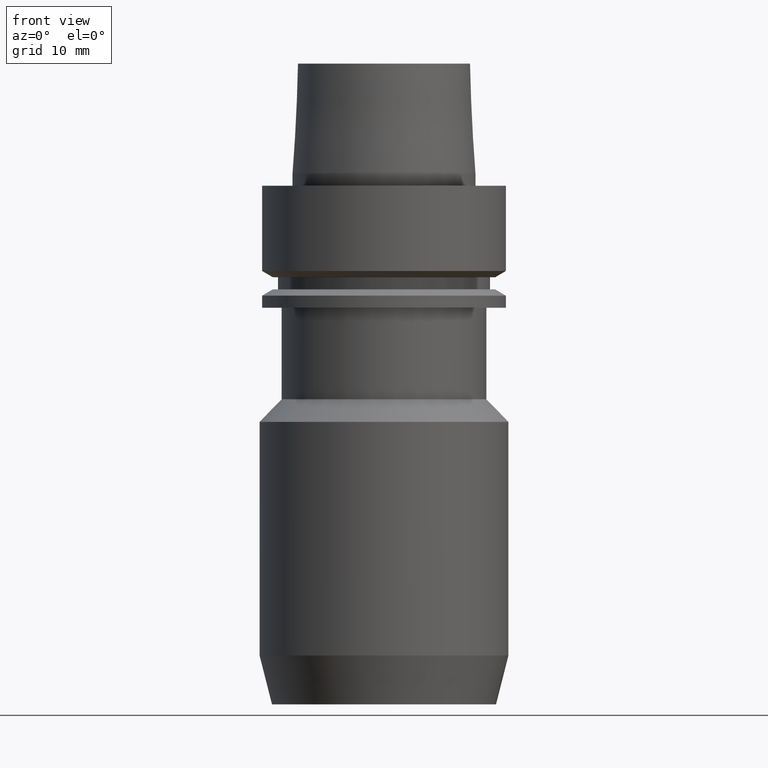
[diagram: clean part render]
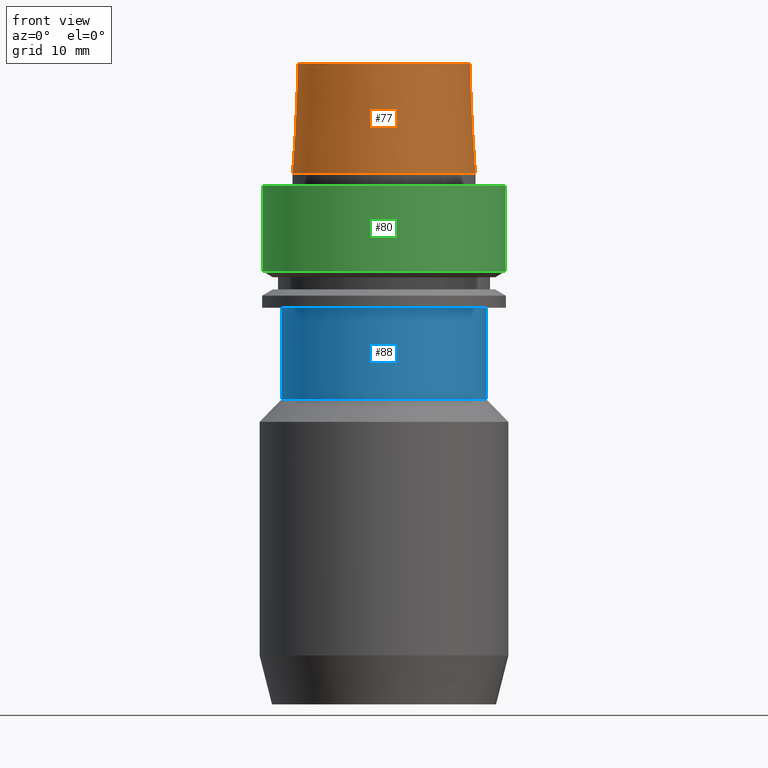
[diagram: same view with three faces highlighted in distinct colors, each labeled with its STEP entity id]
A machine part, front view with three faces highlighted in distinct colors.
Their STEP definitions:

[orange] entity #77 — the highlighted conical surface has half-angle 2.862 deg.
#77=ADVANCED_FACE('',(#97,#98),#99,.T.);
#97=FACE_BOUND('',#146,.T.);
#98=FACE_BOUND('',#147,.T.);
#99=CONICAL_SURFACE('',#148,14.6500000023492,0.0499583954615709);
#146=EDGE_LOOP('',(#199));
#147=EDGE_LOOP('',(#200));
#148=AXIS2_PLACEMENT_3D('',#201,#202,#203);
#199=ORIENTED_EDGE('',*,*,#276,.F.);
#200=ORIENTED_EDGE('',*,*,#275,.T.);
#201=CARTESIAN_POINT('',(-6.73555739531044E-016,-1.34711147906209E-015,11.0));
#202=DIRECTION('',(6.12323399573676E-017,1.22464679914735E-016,-1.0));
#203=DIRECTION('',(-1.23259516440783E-032,1.0,1.22464679914735E-016));
#275=EDGE_CURVE('',#292,#292,#293,.T.);
#276=EDGE_CURVE('',#294,#294,#295,.T.);
#292=VERTEX_POINT('',#324);
#293=CIRCLE('',#325,14.2000000046984);
#294=VERTEX_POINT('',#326);
#295=CIRCLE('',#327,15.1);
#324=CARTESIAN_POINT('',(-1.22464679914735E-015,14.2000000046984,20.0));
#325=AXIS2_PLACEMENT_3D('',#357,#358,#359);
#326=CARTESIAN_POINT('',(-1.22464679914736E-016,15.1,2.0));
#327=AXIS2_PLACEMENT_3D('',#360,#361,#362);
#357=CARTESIAN_POINT('',(-1.22464679914735E-015,-2.44929359829471E-015,20.0));
#358=DIRECTION('',(6.12323399573677E-017,1.22464679914735E-016,-1.0));
#359=DIRECTION('',(-1.23259516440783E-032,1.0,1.22464679914735E-016));
#360=CARTESIAN_POINT('',(-1.22464679914735E-016,-2.44929359829471E-016,2.0));
#361=DIRECTION('',(6.12323399573677E-017,1.22464679914735E-016,-1.0));
#362=DIRECTION('',(-1.23259516440783E-032,1.0,1.22464679914735E-016));

[blue] entity #88 — the highlighted cylindrical surface (bore or boss wall) has radius 16.8 mm, axis along (-0, -0, 1).
#88=ADVANCED_FACE('',(#130,#131),#132,.T.);
#130=FACE_BOUND('',#179,.T.);
#131=FACE_BOUND('',#180,.T.);
#132=CYLINDRICAL_SURFACE('',#181,16.8);
#179=EDGE_LOOP('',(#254));
#180=EDGE_LOOP('',(#255));
#181=AXIS2_PLACEMENT_3D('',#256,#257,#258);
#254=ORIENTED_EDGE('',*,*,#287,.F.);
#255=ORIENTED_EDGE('',*,*,#286,.T.);
#256=CARTESIAN_POINT('',(1.68388934882761E-015,3.36777869765522E-015,-27.5));
#257=DIRECTION('',(-6.12323399573677E-017,-1.22464679914735E-016,1.0));
#258=DIRECTION('',(-1.23259516440783E-032,1.0,1.22464679914735E-016));
#286=EDGE_CURVE('',#314,#314,#315,.T.);
#287=EDGE_CURVE('',#316,#316,#317,.T.);
#314=VERTEX_POINT('',#346);
#315=CIRCLE('',#347,16.8);
#316=VERTEX_POINT('',#348);
#317=CIRCLE('',#349,16.8);
#346=CARTESIAN_POINT('',(1.22464679914735E-015,16.8,-20.0));
#347=AXIS2_PLACEMENT_3D('',#390,#391,#392);
#348=CARTESIAN_POINT('',(2.14313189850787E-015,16.8,-35.0));
#349=AXIS2_PLACEMENT_3D('',#393,#394,#395);
#390=CARTESIAN_POINT('',(1.22464679914735E-015,2.44929359829471E-015,-20.0));
#391=DIRECTION('',(6.12323399573677E-017,1.22464679914735E-016,-1.0));
#392=DIRECTION('',(-1.23259516440783E-032,1.0,1.22464679914735E-016));
#393=CARTESIAN_POINT('',(2.14313189850787E-015,4.28626379701574E-015,-35.0));
#394=DIRECTION('',(6.12323399573677E-017,1.22464679914735E-016,-1.0));
#395=DIRECTION('',(-1.23259516440783E-032,1.0,1.22464679914735E-016));

[green] entity #80 — the highlighted cylindrical surface (bore or boss wall) has radius 20 mm, axis along (-0, -0, 1).
#80=ADVANCED_FACE('',(#106,#107),#108,.T.);
#106=FACE_BOUND('',#155,.T.);
#107=FACE_BOUND('',#156,.T.);
#108=CYLINDRICAL_SURFACE('',#157,20.0);
#155=EDGE_LOOP('',(#214));
#156=EDGE_LOOP('',(#215));
#157=AXIS2_PLACEMENT_3D('',#216,#217,#218);
#214=ORIENTED_EDGE('',*,*,#279,.F.);
#215=ORIENTED_EDGE('',*,*,#278,.T.);
#216=CARTESIAN_POINT('',(4.27991830799565E-016,8.55983661599131E-016,-6.98963703));
#217=DIRECTION('',(-6.12323399573677E-017,-1.22464679914735E-016,1.0));
#218=DIRECTION('',(-1.23259516440783E-032,1.0,1.22464679914735E-016));
#278=EDGE_CURVE('',#298,#298,#299,.T.);
#279=EDGE_CURVE('',#300,#300,#301,.T.);
#298=VERTEX_POINT('',#330);
#299=CIRCLE('',#331,20.0);
#300=VERTEX_POINT('',#332);
#301=CIRCLE('',#333,20.0);
#330=CARTESIAN_POINT('',(-2.46519032881566E-031,20.0,2.44929359829471E-015));
#331=AXIS2_PLACEMENT_3D('',#366,#367,#368);
#332=CARTESIAN_POINT('',(8.55983661599131E-016,20.0,-13.97927406));
#333=AXIS2_PLACEMENT_3D('',#369,#370,#371);
#366=CARTESIAN_POINT('',(0.0,0.0,0.0));
#367=DIRECTION('',(6.12323399573677E-017,1.22464679914735E-016,-1.0));
#368=DIRECTION('',(-1.23259516440783E-032,1.0,1.22464679914735E-016));
#369=CARTESIAN_POINT('',(8.55983661599131E-016,1.71196732319826E-015,-13.97927406));
#370=DIRECTION('',(6.12323399573677E-017,1.22464679914735E-016,-1.0));
#371=DIRECTION('',(-1.23259516440783E-032,1.0,1.22464679914735E-016));